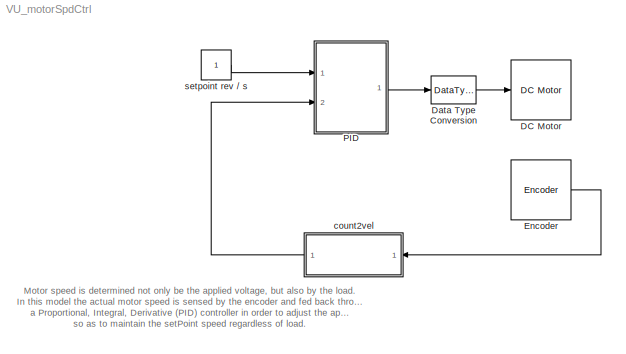
MODEL VU_motorSpdCtrl
KIND model
BLOCK [Reference] DC Motor  REF=lego_nxt_lib/DC Motor  (lib defined in mdl_3d9a4c0387f8)
  Ports = [1]
  SID = 25
  SourceBlock = lego_nxt_lib/DC Motor
  SourceType = Servo Motor (Simple)
  brake = Coast
  port = Port C
BLOCK [DataTypeConversion] Data Type Conversion
  OutDataTypeStr = int8
  RndMeth = Floor
  SID = 1
BLOCK [Reference] Encoder  REF=lego_nxt_lib/Encoder  (lib defined in mdl_3d9a4c0387f8)
  Ports = [0, 1]
  SID = 24
  SourceBlock = lego_nxt_lib/Encoder
  SourceType = Encoder
  port = Port C
  st = 0.05
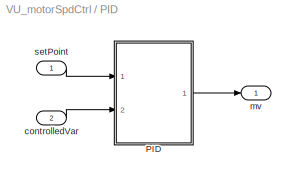
BLOCK [SubSystem] PID
  Ports = [2, 1]
  RequestExecContextInheritance = off
  SID = 2
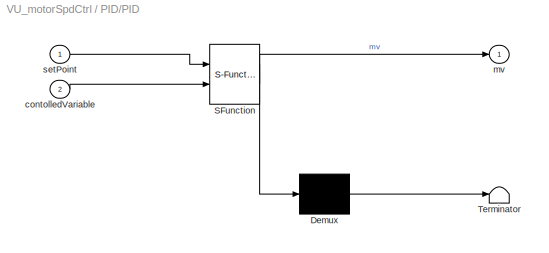
BLOCK [SubSystem] PID/PID
  ErrorFcn = Stateflow.Translate.translate
  PermitHierarchicalResolution = ExplicitOnly
  Ports = [2, 1]
  RequestExecContextInheritance = off
  SFBlockType = MATLAB Function
  SID = 7
  TreatAsAtomicUnit = on
BLOCK [Demux] PID/PID/ Demux 
  Outputs = 1
  Ports = [1, 1]
  SID = 7::14
BLOCK [S-Function] PID/PID/ SFunction 
  EnableBusSupport = off
  FunctionName = sf_sfun
  Parameters = Kc,Td,Ti,mvMax,mvMin
  PortCounts = [2 2]
  Ports = [2, 2]
  SFcnIsStateOwnerBlock = off
  SFunctionDeploymentMode = off
  SID = 7::13
  Tag = Stateflow S-Function 2
BLOCK [Terminator] PID/PID/ Terminator 
  SID = 7::15
BLOCK [Inport] PID/PID/contolledVariable
  IconDisplay = Port number
  Port = 2
  SID = 7::2
BLOCK [Outport] PID/PID/mv
  IconDisplay = Port number
  SID = 7::8
BLOCK [Inport] PID/PID/setPoint
  IconDisplay = Port number
  SID = 7::1
BLOCK [Inport] PID/controlledVar
  IconDisplay = Port number
  Port = 2
  SID = 4
BLOCK [Outport] PID/mv
  IconDisplay = Port number
  SID = 8
BLOCK [Inport] PID/setPoint
  IconDisplay = Port number
  SID = 3
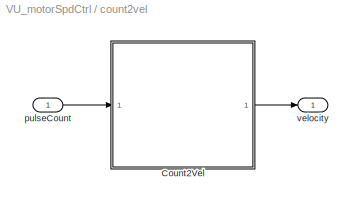
BLOCK [SubSystem] count2vel
  Ports = [1, 1]
  RequestExecContextInheritance = off
  SID = 15
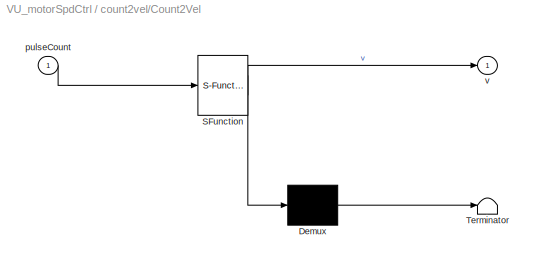
BLOCK [SubSystem] count2vel/Count2Vel
  ErrorFcn = Stateflow.Translate.translate
  PermitHierarchicalResolution = ExplicitOnly
  Ports = [1, 1]
  RequestExecContextInheritance = off
  SFBlockType = MATLAB Function
  SID = 17
  TreatAsAtomicUnit = on
BLOCK [Demux] count2vel/Count2Vel/ Demux 
  Outputs = 1
  Ports = [1, 1]
  SID = 17::11
BLOCK [S-Function] count2vel/Count2Vel/ SFunction 
  EnableBusSupport = off
  FunctionName = sf_sfun
  Parameters = gainFactor
  PortCounts = [1 2]
  Ports = [1, 2]
  SFcnIsStateOwnerBlock = off
  SFunctionDeploymentMode = off
  SID = 17::10
  Tag = Stateflow S-Function 14
BLOCK [Terminator] count2vel/Count2Vel/ Terminator 
  SID = 17::12
BLOCK [Inport] count2vel/Count2Vel/pulseCount
  IconDisplay = Port number
  SID = 17::1
BLOCK [Outport] count2vel/Count2Vel/v
  IconDisplay = Port number
  SID = 17::5
BLOCK [Inport] count2vel/pulseCount
  IconDisplay = Port number
  SID = 16
BLOCK [Outport] count2vel/velocity
  IconDisplay = Port number
  SID = 18
BLOCK [Constant] setpoint rev // s
  SID = 13
ANNOTATION (root): Motor speed is determined not only be the applied voltage, but also by the load.\nIn this model the actual motor speed is sensed by the encoder and fed back through\na Proportional, Integral, Derivative (PID) controller in order to adjust the applied voltage \nso as to maintain the setPoint speed regardless of load.
LINE Data Type Conversion:1 -> DC Motor:1
LINE Encoder:1 -> count2vel:1
LINE PID/PID/ Demux :1 -> PID/PID/ Terminator :1
LINE PID/PID/ SFunction :1 -> PID/PID/ Demux :1
LINE PID/PID/ SFunction :2 -> PID/PID/mv:1
LINE PID/PID/contolledVariable:1 -> PID/PID/ SFunction :2
LINE PID/PID/setPoint:1 -> PID/PID/ SFunction :1
LINE PID/PID:1 -> PID/mv:1
LINE PID/controlledVar:1 -> PID/PID:2
LINE PID/setPoint:1 -> PID/PID:1
LINE PID:1 -> Data Type Conversion:1
LINE count2vel/Count2Vel/ Demux :1 -> count2vel/Count2Vel/ Terminator :1
LINE count2vel/Count2Vel/ SFunction :1 -> count2vel/Count2Vel/ Demux :1
LINE count2vel/Count2Vel/ SFunction :2 -> count2vel/Count2Vel/v:1
LINE count2vel/Count2Vel/pulseCount:1 -> count2vel/Count2Vel/ SFunction :1
LINE count2vel/Count2Vel:1 -> count2vel/velocity:1
LINE count2vel/pulseCount:1 -> count2vel/Count2Vel:1
LINE count2vel:1 -> PID:2
LINE setpoint rev // s:1 -> PID:1
CHART PID/PID states=1 transitions=1
  STATE_LABEL 'eML_blk_kernel()'
CHART count2vel/Count2Vel states=1 transitions=1
  STATE_LABEL 'eML_blk_kernel()'
